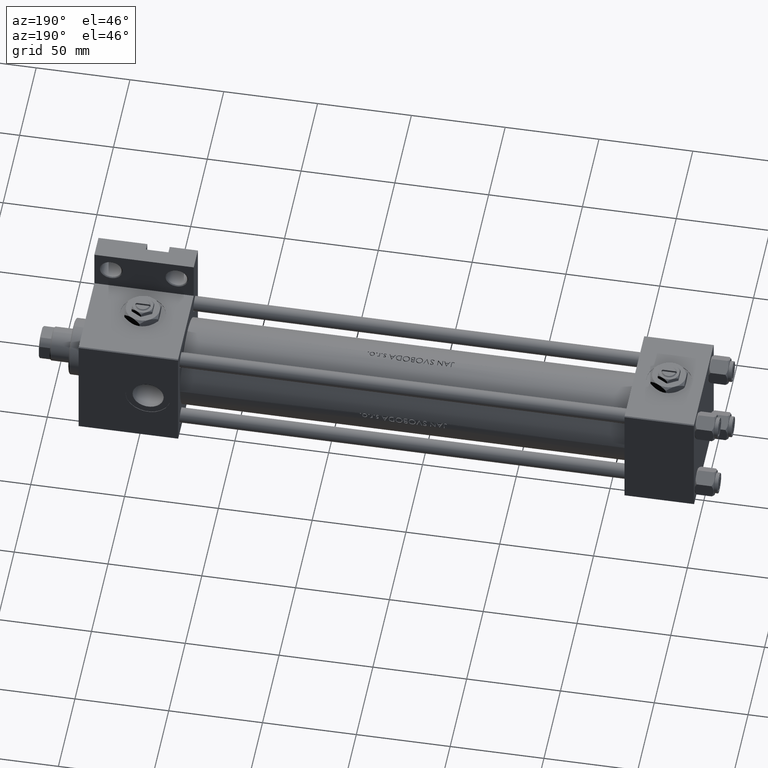
[diagram: clean part render]
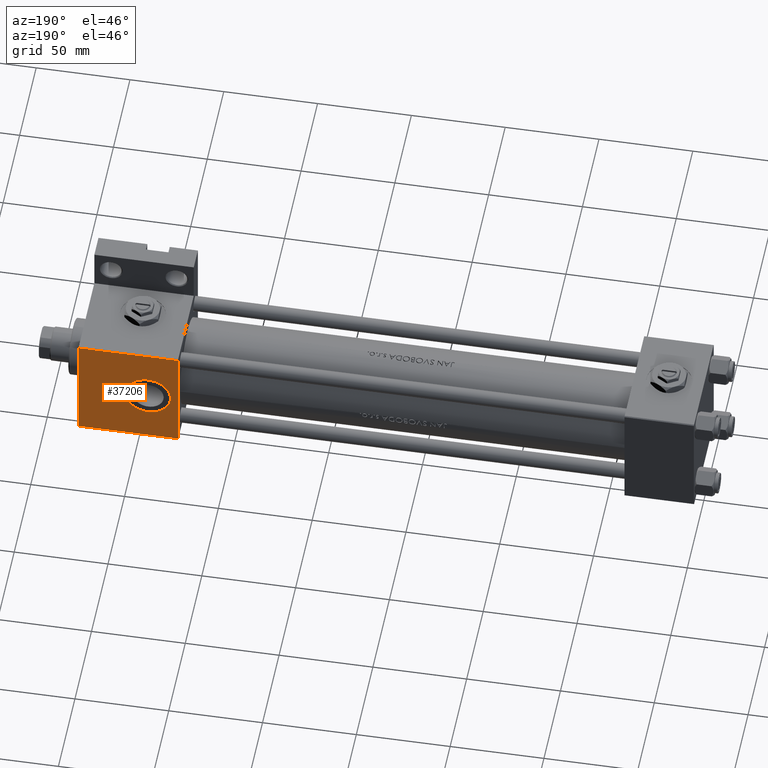
[diagram: same view with one face highlighted and labeled with its STEP entity id]
A machine part, auxiliary view. The second image highlights one B-rep face of the part: STEP entity #37206.
In plain terms, the highlighted planar face has unit normal (0, -1, -0).
Its self-contained STEP definition (entity closure, byte-faithful):
#112 = AXIS2_PLACEMENT_3D ( 'NONE', #23497, #4228, #3486 ) ;
#1360 = LINE ( 'NONE', #13659, #12146 ) ;
#1612 = DIRECTION ( 'NONE',  ( 1.000000000000000000, 0.000000000000000000, 0.000000000000000000 ) ) ;
#3052 = EDGE_LOOP ( 'NONE', ( #21888, #16929, #7363, #22501 ) ) ;
#3486 = DIRECTION ( 'NONE',  ( 1.000000000000000000, 0.000000000000000000, 0.000000000000000000 ) ) ;
#4228 = DIRECTION ( 'NONE',  ( 0.000000000000000000, 0.000000000000000000, 1.000000000000000000 ) ) ;
#4377 = DIRECTION ( 'NONE',  ( 0.000000000000000000, 1.000000000000000000, 1.156482317317871478E-16 ) ) ;
#4886 = FACE_BOUND ( 'NONE', #13277, .T. ) ;
#5131 = LINE ( 'NONE', #39792, #33004 ) ;
#5387 = CARTESIAN_POINT ( 'NONE',  ( 327.9999999999999432, -29.50000000000000000, 29.99999999999999289 ) ) ;
#6526 = VERTEX_POINT ( 'NONE', #40159 ) ;
#7363 = ORIENTED_EDGE ( 'NONE', *, *, #37024, .T. ) ;
#8711 = CARTESIAN_POINT ( 'NONE',  ( 327.9999999999999432, 29.50000000000002487, 30.00000000000000000 ) ) ;
#8716 = DIRECTION ( 'NONE',  ( 0.000000000000000000, -1.000000000000000000, -1.156482317317871478E-16 ) ) ;
#8867 = AXIS2_PLACEMENT_3D ( 'NONE', #43704, #20361, #24717 ) ;
#9801 = CARTESIAN_POINT ( 'NONE',  ( 274.9999999999999432, 30.00000000000000000, 30.00000000000000000 ) ) ;
#10952 = AXIS2_PLACEMENT_3D ( 'NONE', #12825, #39546, #4377 ) ;
#11752 = VECTOR ( 'NONE', #14409, 1000.000000000000000 ) ;
#12146 = VECTOR ( 'NONE', #1612, 1000.000000000000000 ) ;
#12571 = PLANE ( 'NONE',  #10952 ) ;
#12718 = EDGE_CURVE ( 'NONE', #35204, #33534, #5131, .T. ) ;
#12825 = CARTESIAN_POINT ( 'NONE',  ( 327.9999999999999432, 30.00000000000000000, 30.00000000000000000 ) ) ;
#13277 = EDGE_LOOP ( 'NONE', ( #32952, #36549 ) ) ;
#13659 = CARTESIAN_POINT ( 'NONE',  ( 327.9999999999999432, -29.50000000000000000, 29.99999999999999289 ) ) ;
#14409 = DIRECTION ( 'NONE',  ( 0.000000000000000000, -1.000000000000000000, -1.156482317317871478E-16 ) ) ;
#16670 = DIRECTION ( 'NONE',  ( -1.000000000000000000, 0.000000000000000000, 0.000000000000000000 ) ) ;
#16929 = ORIENTED_EDGE ( 'NONE', *, *, #12718, .T. ) ;
#18150 = CIRCLE ( 'NONE', #112, 12.00000000000001066 ) ;
#20198 = VERTEX_POINT ( 'NONE', #5387 ) ;
#20361 = DIRECTION ( 'NONE',  ( 0.000000000000000000, 0.000000000000000000, 1.000000000000000000 ) ) ;
#21888 = ORIENTED_EDGE ( 'NONE', *, *, #50592, .F. ) ;
#22120 = CIRCLE ( 'NONE', #8867, 12.00000000000001066 ) ;
#22501 = ORIENTED_EDGE ( 'NONE', *, *, #24973, .T. ) ;
#23254 = VECTOR ( 'NONE', #8716, 1000.000000000000000 ) ;
#23303 = EDGE_CURVE ( 'NONE', #6526, #49186, #22120, .T. ) ;
#23497 = CARTESIAN_POINT ( 'NONE',  ( 291.0000000000000000, -3.469446951953613794E-15, 29.99999999999999645 ) ) ;
#24717 = DIRECTION ( 'NONE',  ( 1.000000000000000000, 0.000000000000000000, 0.000000000000000000 ) ) ;
#24973 = EDGE_CURVE ( 'NONE', #31248, #20198, #1360, .T. ) ;
#25508 = CARTESIAN_POINT ( 'NONE',  ( 303.0000000000000000, -3.469446951953613794E-15, 29.99999999999999645 ) ) ;
#25839 = CARTESIAN_POINT ( 'NONE',  ( 274.9999999999999432, -29.50000000000000000, 29.99999999999999289 ) ) ;
#27449 = CARTESIAN_POINT ( 'NONE',  ( 327.9999999999999432, 30.00000000000000000, 30.00000000000000000 ) ) ;
#31248 = VERTEX_POINT ( 'NONE', #25839 ) ;
#32952 = ORIENTED_EDGE ( 'NONE', *, *, #45448, .F. ) ;
#33004 = VECTOR ( 'NONE', #16670, 1000.000000000000000 ) ;
#33534 = VERTEX_POINT ( 'NONE', #49224 ) ;
#33940 = LINE ( 'NONE', #9801, #11752 ) ;
#35204 = VERTEX_POINT ( 'NONE', #8711 ) ;
#36549 = ORIENTED_EDGE ( 'NONE', *, *, #23303, .F. ) ;
#37024 = EDGE_CURVE ( 'NONE', #33534, #31248, #33940, .T. ) ;
#37206 = ADVANCED_FACE ( 'NONE', ( #4886, #43642 ), #12571, .F. ) ;
#39546 = DIRECTION ( 'NONE',  ( 0.000000000000000000, 1.156482317317871478E-16, -1.000000000000000000 ) ) ;
#39792 = CARTESIAN_POINT ( 'NONE',  ( 274.9999999999999432, 29.50000000000002487, 30.00000000000000000 ) ) ;
#40159 = CARTESIAN_POINT ( 'NONE',  ( 278.9999999999999432, -1.999870792976783339E-15, 29.99999999999999645 ) ) ;
#43642 = FACE_OUTER_BOUND ( 'NONE', #3052, .T. ) ;
#43704 = CARTESIAN_POINT ( 'NONE',  ( 291.0000000000000000, -3.469446951953613794E-15, 29.99999999999999645 ) ) ;
#45448 = EDGE_CURVE ( 'NONE', #49186, #6526, #18150, .T. ) ;
#47724 = LINE ( 'NONE', #27449, #23254 ) ;
#49186 = VERTEX_POINT ( 'NONE', #25508 ) ;
#49224 = CARTESIAN_POINT ( 'NONE',  ( 274.9999999999999432, 29.50000000000002487, 30.00000000000000000 ) ) ;
#50592 = EDGE_CURVE ( 'NONE', #35204, #20198, #47724, .T. ) ;